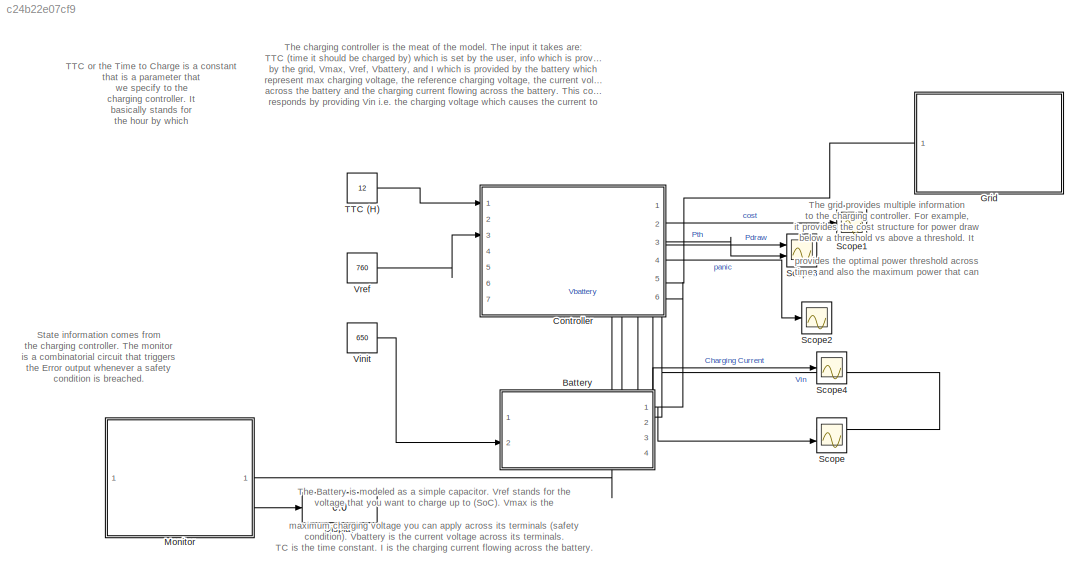
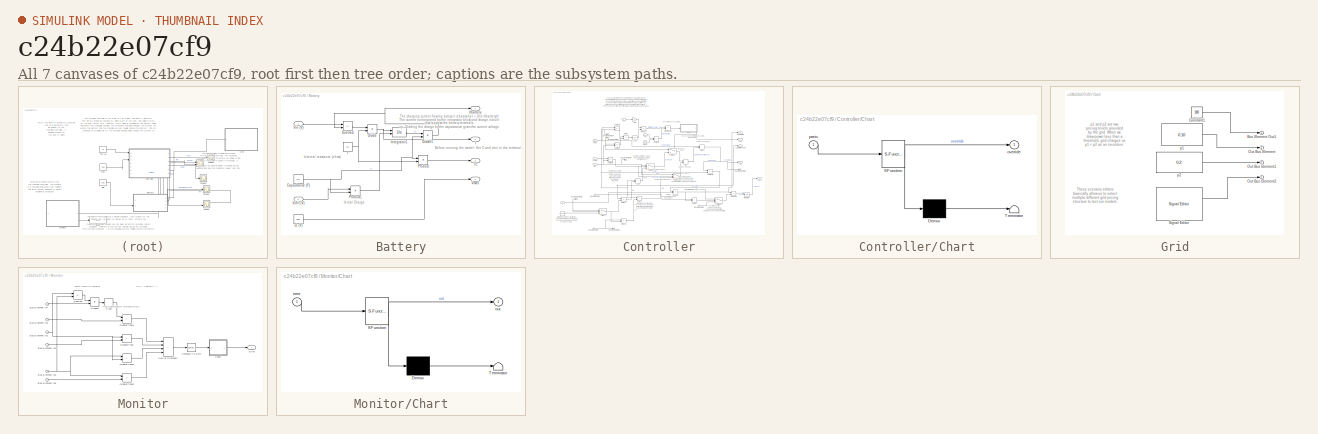
[diagram: thumbnail index - all 7 canvases of the model, root first then tree order]
MODEL slx_c24b22e07cf9
KIND model
CONFIG AbsTol = auto
CONFIG EnableMultiTasking = off
CONFIG FixedStep = auto
CONFIG MaxStep = auto
CONFIG MinStep = auto
CONFIG RelTol = 1e-3
CONFIG SampleTimeConstraint = Unconstrained
CONFIG SolverName = VariableStepAuto
CONFIG StartTime = 0.0
CONFIG StopTime = 12
BLOCK [SubSystem] Battery
  PortSchema = {"entries":[{"content":{"sides":[{"content":{"connectorIds":["In1","In2","Out4"]},"type":"ConnectorPlacement.EquallySpacedRectSide","uuid":"c26d1ca6-d5c6-41a9-a1a0-e3693243df6e"},{"content":{"connectorIds":["Out1"],"side":"RIGHT"},"type":"ConnectorPlacement.EquallySpacedRectSide","uuid":"035a91c5-644a-4a3c-8d91-d0006be2b843"},{"content":{"connectorIds":["Out2","Out3"],"side":"TOP"},"type":"Connect...<+266ch>
  Ports = [2, 4]
  RequestExecContextInheritance = off
BLOCK [Constant] Battery/Capacitance (F)
  Value = 0.5
BLOCK [Product] Battery/Divide
  Inputs = */
  Ports = [2, 1]
BLOCK [Product] Battery/Divide1
  Inputs = */
  Ports = [2, 1]
BLOCK [Outport] Battery/I
  Port = 2
BLOCK [Integrator] Battery/Integrator1
  InitialCondition = C*vinit
  InitialConditionSource = external
  Ports = [2, 1]
BLOCK [Product] Battery/Product
  Ports = [2, 1]
BLOCK [Product] Battery/Product1
  Ports = [2, 1]
BLOCK [Sum] Battery/Subtract
  IconShape = rectangular
  Inputs = +-
  Ports = [2, 1]
BLOCK [Outport] Battery/TC
  Port = 3
BLOCK [Outport] Battery/Vbattery
BLOCK [Inport] Battery/Vin (V)
BLOCK [Inport] Battery/Vinit (V)
  Port = 2
BLOCK [Outport] Battery/Vmax
  Port = 4
BLOCK [Constant] Battery/r
  Value = 10
BLOCK [Constant] Battery/v1 (V)
  Value = 800
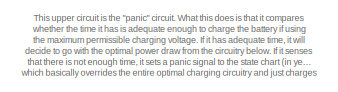
[diagram: Controller - part 1/2, top center region]
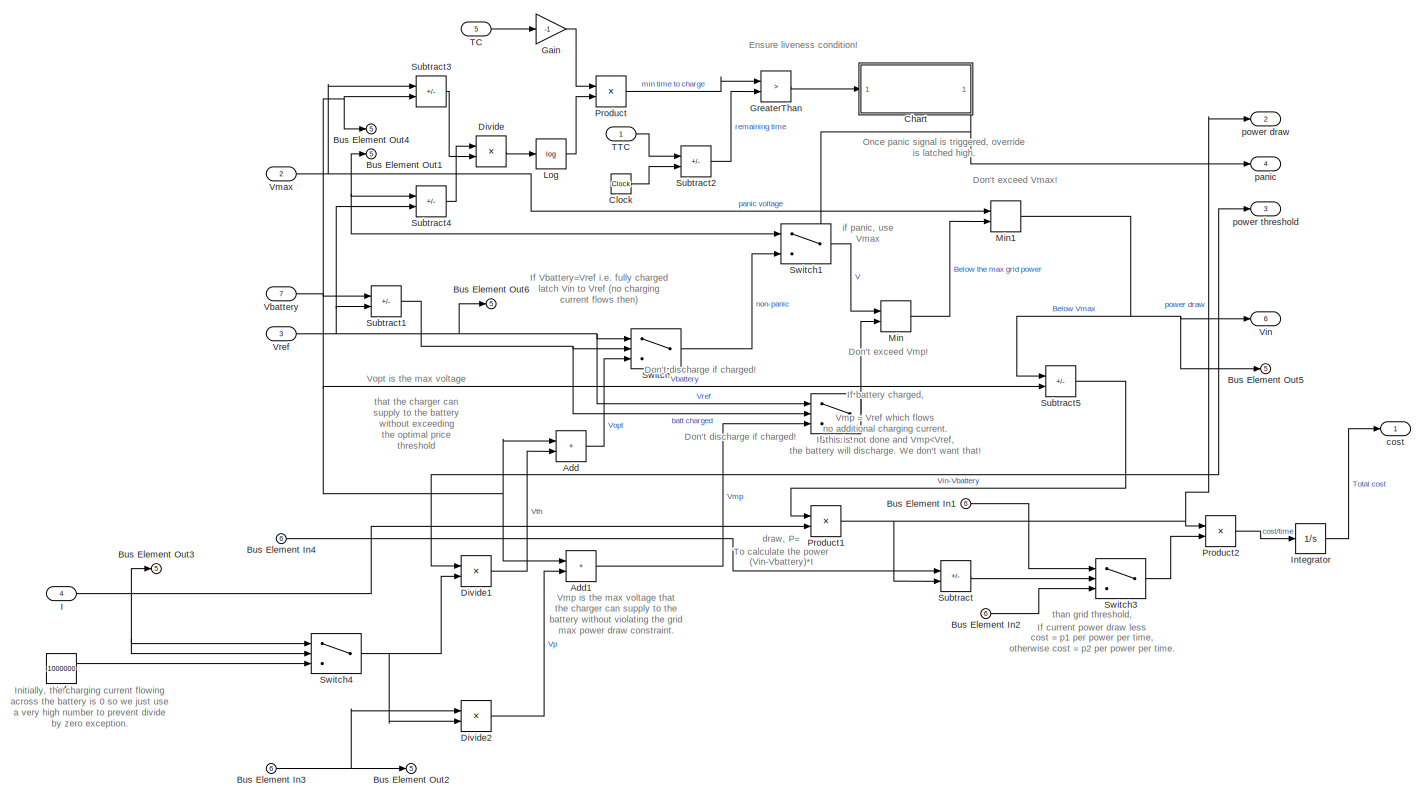
[diagram: Controller - part 2/2, most of the canvas]
BLOCK [SubSystem] Controller
  PortSchema = {"entries":[{"content":{"sides":[{"content":{"connectorIds":["In1","Out5","In2","In3","Out6"]},"type":"ConnectorPlacement.EquallySpacedRectSide","uuid":"c26d1ca6-d5c6-41a9-a1a0-e3693243df6e"},{"content":{"connectorIds":["In6","Out1","Out2","Out3","Out4","In7"],"side":"RIGHT"},"type":"ConnectorPlacement.EquallySpacedRectSide","uuid":"035a91c5-644a-4a3c-8d91-d0006be2b843"},{"content":{"connectorIds"...<+454ch>
  Ports = [7, 6]
  RequestExecContextInheritance = off
BLOCK [Sum] Controller/Add
  IconShape = rectangular
  Ports = [2, 1]
BLOCK [Sum] Controller/Add1
  IconShape = rectangular
  Ports = [2, 1]
BLOCK [Inport] Controller/Bus Element In1
  Port = 6
BLOCK [Inport] Controller/Bus Element In2
  Port = 6
BLOCK [Inport] Controller/Bus Element In3
  Port = 6
BLOCK [Inport] Controller/Bus Element In4
  Port = 6
BLOCK [Outport] Controller/Bus Element Out1
  Port = 5
BLOCK [Outport] Controller/Bus Element Out2
  Port = 5
BLOCK [Outport] Controller/Bus Element Out3
  Port = 5
BLOCK [Outport] Controller/Bus Element Out4
  Port = 5
BLOCK [Outport] Controller/Bus Element Out5
  Port = 5
BLOCK [Outport] Controller/Bus Element Out6
  Port = 5
BLOCK [SubSystem] Controller/Chart
  ErrorFcn = Stateflow.Translate.translate
  PermitHierarchicalResolution = ExplicitOnly
  PortSchema = {"entries":[{"content":{"sides":[{"content":{"connectorIds":["In1"]},"type":"ConnectorPlacement.EquallySpacedRectSide","uuid":"c26d1ca6-d5c6-41a9-a1a0-e3693243df6e"},{"content":{"connectorIds":[],"side":"RIGHT"},"type":"ConnectorPlacement.EquallySpacedRectSide","uuid":"035a91c5-644a-4a3c-8d91-d0006be2b843"},{"content":{"connectorIds":[],"side":"TOP"},"type":"ConnectorPlacement.EquallySpacedRectSid...<+384ch>
  Ports = [1, 1]
  RequestExecContextInheritance = off
  SFBlockType = Chart
  TreatAsAtomicUnit = on
BLOCK [Demux] Controller/Chart/ Demux 
  Outputs = 1
  Ports = [1, 1]
BLOCK [S-Function] Controller/Chart/ SFunction 
  EnableBusSupport = on
  FunctionName = sf_sfun
  PortCounts = [1 2]
  Ports = [1, 2]
  SFcnIsStateOwnerBlock = off
  SFunctionDeploymentMode = off
  Tag = Stateflow S-Function 3
BLOCK [Terminator] Controller/Chart/ Terminator 
BLOCK [Outport] Controller/Chart/override
BLOCK [Inport] Controller/Chart/panic
BLOCK [Clock] Controller/Clock
BLOCK [Product] Controller/Divide
  Inputs = */
  Ports = [2, 1]
BLOCK [Product] Controller/Divide1
  Inputs = */
  Ports = [2, 1]
BLOCK [Product] Controller/Divide2
  Inputs = */
  Ports = [2, 1]
BLOCK [Gain] Controller/Gain
  Gain = -1
BLOCK [RelationalOperator] Controller/GreaterThan
  InputSameDT = off
  Operator = >
  OutDataTypeStr = boolean
  Ports = [2, 1]
  RndMeth = Simplest
BLOCK [Inport] Controller/I
  Port = 4
BLOCK [Constant] Controller/Inf
  Value = 1000000
BLOCK [Integrator] Controller/Integrator
  Ports = [1, 1]
BLOCK [Math] Controller/Log
  Operator = log
  Ports = [1, 1]
BLOCK [MinMax] Controller/Min
  Inputs = 2
  Ports = [2, 1]
BLOCK [MinMax] Controller/Min1
  Inputs = 2
  Ports = [2, 1]
BLOCK [Product] Controller/Product
  Ports = [2, 1]
BLOCK [Product] Controller/Product1
  Ports = [2, 1]
BLOCK [Product] Controller/Product2
  Ports = [2, 1]
BLOCK [Sum] Controller/Subtract
  IconShape = rectangular
  Inputs = +-
  Ports = [2, 1]
BLOCK [Sum] Controller/Subtract1
  IconShape = rectangular
  Inputs = +-
  Ports = [2, 1]
BLOCK [Sum] Controller/Subtract2
  IconShape = rectangular
  Inputs = +-
  Ports = [2, 1]
BLOCK [Sum] Controller/Subtract3
  IconShape = rectangular
  Inputs = +-
  Ports = [2, 1]
BLOCK [Sum] Controller/Subtract4
  IconShape = rectangular
  Inputs = +-
  Ports = [2, 1]
BLOCK [Sum] Controller/Subtract5
  IconShape = rectangular
  Inputs = +-
  Ports = [2, 1]
BLOCK [Switch] Controller/Switch
  InputSameDT = off
  SaturateOnIntegerOverflow = off
BLOCK [Switch] Controller/Switch1
  Criteria = u2 > Threshold
  InputSameDT = off
  SaturateOnIntegerOverflow = off
BLOCK [Switch] Controller/Switch2
  InputSameDT = off
  SaturateOnIntegerOverflow = off
BLOCK [Switch] Controller/Switch3
  InputSameDT = off
  SaturateOnIntegerOverflow = off
  Threshold = -1e-6
BLOCK [Switch] Controller/Switch4
  Criteria = u2 > Threshold
  InputSameDT = off
  SaturateOnIntegerOverflow = off
BLOCK [Inport] Controller/TC
  Port = 5
BLOCK [Inport] Controller/TTC
BLOCK [Inport] Controller/Vbattery
  Port = 7
BLOCK [Outport] Controller/Vin
  Port = 6
BLOCK [Inport] Controller/Vmax
  Port = 2
BLOCK [Inport] Controller/Vref
  Port = 3
BLOCK [Outport] Controller/cost
BLOCK [Outport] Controller/panic
  Port = 4
BLOCK [Outport] Controller/power draw
  Port = 2
BLOCK [Outport] Controller/power threshold
  Port = 3
BLOCK [Display] Display
  Decimation = 1
  Ports = [1]
BLOCK [SubSystem] Grid
  NameLocation = top
  Ports = [0, 1]
  RequestExecContextInheritance = off
BLOCK [Outport] Grid/Bus Element Out1
BLOCK [Constant] Grid/Constant1
  Value = 1000
BLOCK [Outport] Grid/Out Bus Element
BLOCK [Outport] Grid/Out Bus Element1
BLOCK [Outport] Grid/Out Bus Element2
BLOCK [Reference] Grid/Signal Editor  REF=SignalEditorBlockLib/Signal Editor
  Ports = [0, 2]
  SourceBlock = SignalEditorBlockLib/Signal Editor
  SourceProductBaseCode = SL
  SourceType = SignalEditor
  UserDataPersistent = on
BLOCK [Constant] Grid/p1
  Value = 0.10
BLOCK [Constant] Grid/p2
  Value = 0.2
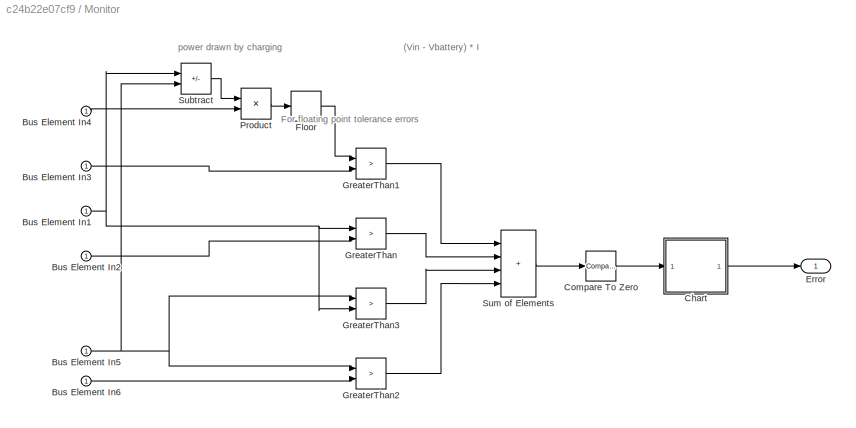
BLOCK [SubSystem] Monitor
  PortSchema = {"entries":[{"content":{"sides":[{"content":{"connectorIds":[]},"type":"ConnectorPlacement.EquallySpacedRectSide","uuid":"d61a2096-d21e-45a0-93a4-4f716f0af920"},{"content":{"connectorIds":["In1","Out1"],"side":"RIGHT"},"type":"ConnectorPlacement.EquallySpacedRectSide","uuid":"21da9122-f398-4482-953b-b1590b590559"},{"content":{"connectorIds":[],"side":"TOP"},"type":"ConnectorPlacement.EquallySpaced...<+241ch>
  Ports = [1, 1]
  RequestExecContextInheritance = off
BLOCK [Inport] Monitor/Bus Element In1
BLOCK [Inport] Monitor/Bus Element In2
BLOCK [Inport] Monitor/Bus Element In3
BLOCK [Inport] Monitor/Bus Element In4
BLOCK [Inport] Monitor/Bus Element In5
BLOCK [Inport] Monitor/Bus Element In6
BLOCK [SubSystem] Monitor/Chart
  ErrorFcn = Stateflow.Translate.translate
  PermitHierarchicalResolution = ExplicitOnly
  Ports = [1, 1]
  RequestExecContextInheritance = off
  SFBlockType = Chart
  TreatAsAtomicUnit = on
BLOCK [Demux] Monitor/Chart/ Demux 
  Outputs = 1
  Ports = [1, 1]
BLOCK [S-Function] Monitor/Chart/ SFunction 
  EnableBusSupport = on
  FunctionName = sf_sfun
  PortCounts = [1 2]
  Ports = [1, 2]
  SFcnIsStateOwnerBlock = off
  SFunctionDeploymentMode = off
  Tag = Stateflow S-Function 1
BLOCK [Terminator] Monitor/Chart/ Terminator 
BLOCK [Inport] Monitor/Chart/error
BLOCK [Outport] Monitor/Chart/out
BLOCK [Reference] Monitor/Compare To Zero  REF=simulink/Logic and Bit
Operations/Compare
To Zero
  Ports = [1, 1]
  SourceBlock = simulink/Logic and Bit\nOperations/Compare\nTo Zero
  SourceProductBaseCode = SL
  SourceType = Compare To Zero
BLOCK [Outport] Monitor/Error
BLOCK [Rounding] Monitor/Floor
BLOCK [RelationalOperator] Monitor/GreaterThan
  InputSameDT = off
  Operator = >
  OutDataTypeStr = boolean
  Ports = [2, 1]
  RndMeth = Simplest
BLOCK [RelationalOperator] Monitor/GreaterThan1
  InputSameDT = off
  Operator = >
  OutDataTypeStr = boolean
  Ports = [2, 1]
  RndMeth = Ceiling
BLOCK [RelationalOperator] Monitor/GreaterThan2
  InputSameDT = off
  Operator = >
  OutDataTypeStr = boolean
  Ports = [2, 1]
  RndMeth = Simplest
BLOCK [RelationalOperator] Monitor/GreaterThan3
  InputSameDT = off
  Operator = >
  OutDataTypeStr = boolean
  Ports = [2, 1]
  RndMeth = Simplest
BLOCK [Product] Monitor/Product
  Ports = [2, 1]
BLOCK [Sum] Monitor/Subtract
  IconShape = rectangular
  Inputs = +-
  Ports = [2, 1]
BLOCK [Sum] Monitor/Sum of Elements
  IconShape = rectangular
  Inputs = ++++
  Ports = [4, 1]
BLOCK [Scope] Scope
  Floating = off
  NumInputPorts = 2
  Ports = [2]
  ScopeSpecificationString = Simulink.scopes.TimeScopeBlockCfg('CurrentConfiguration', extmgr.ConfigurationSet(extmgr.Configuration('Core','General UI',true),extmgr.Configuration('Core','Source UI',true),extmgr.Configuration('Sources','WiredSimulink',true),extmgr.Configuration('Visuals','Time Domain',true,'SerializedDisplays',{struct('MinYLimReal','631.25','MaxYLimReal','818.75','YLabelReal','','MinYLimMag','631.25','MaxYLimM...<+1356ch>
BLOCK [Scope] Scope1
  Floating = off
  NumInputPorts = 1
  Ports = [1]
  ScopeSpecificationString = Simulink.scopes.TimeScopeBlockCfg('CurrentConfiguration', extmgr.ConfigurationSet(extmgr.Configuration('Core','General UI',true),extmgr.Configuration('Core','Source UI',true),extmgr.Configuration('Sources','WiredSimulink',true,'DataLoggingVariableName','ScopeData1'),extmgr.Configuration('Visuals','Time Domain',true,'SerializedDisplays',{struct('MinYLimReal','-36.72509','MaxYLimReal','330.52584','Y...<+1405ch>
BLOCK [Scope] Scope2
  Floating = off
  NumInputPorts = 1
  Ports = [1]
  ScopeSpecificationString = Simulink.scopes.TimeScopeBlockCfg('CurrentConfiguration', extmgr.ConfigurationSet(extmgr.Configuration('Core','General UI',true),extmgr.Configuration('Core','Source UI',true),extmgr.Configuration('Sources','WiredSimulink',true,'DataLoggingVariableName','ScopeData2'),extmgr.Configuration('Visuals','Time Domain',true,'SerializedDisplays',{struct('MinYLimReal','-1.00000','MaxYLimReal','1.00000','YLab...<+1398ch>
BLOCK [Scope] Scope3
  Floating = off
  NumInputPorts = 2
  Ports = [2]
  ScopeSpecificationString = Simulink.scopes.TimeScopeBlockCfg('CurrentConfiguration', extmgr.ConfigurationSet(extmgr.Configuration('Core','General UI',true),extmgr.Configuration('Core','Source UI',true),extmgr.Configuration('Sources','WiredSimulink',true,'DataLoggingVariableName','ScopeData3'),extmgr.Configuration('Visuals','Time Domain',true,'SerializedDisplays',{struct('MinYLimReal','-62.5','MaxYLimReal','562.5','YLabelRea...<+1459ch>
BLOCK [Scope] Scope4
  Floating = off
  NumInputPorts = 1
  Ports = [1]
  ScopeSpecificationString = Simulink.scopes.TimeScopeBlockCfg('CurrentConfiguration', extmgr.ConfigurationSet(extmgr.Configuration('Core','General UI',true),extmgr.Configuration('Core','Source UI',true),extmgr.Configuration('Sources','WiredSimulink',true,'DataLoggingVariableName','ScopeData1'),extmgr.Configuration('Visuals','Time Domain',true,'SerializedDisplays',{struct('MinYLimReal','-0.88388','MaxYLimReal','7.95495','YLab...<+1407ch>
BLOCK [Constant] TTC (H)
  Value = 12
BLOCK [Constant] Vinit
  Value = 650
BLOCK [Constant] Vref
  Value = 760
ANNOTATION (root): State information comes from the charging controller. The monitor is a combinatorial circuit that triggers the Error output whenever a safety condition is breached.
ANNOTATION (root): TTC or the Time to Charge is a constant that is a parameter that we specify to the charging controller. It basically stands for the hour by which the battery should be fully charged. i.e. if it's 8, it means that the battery must fully charge within 8 hours would be a liveness condition.
ANNOTATION (root): The Battery is modeled as a simple capacitor. Vref stands for the voltage that you want to charge up to (SoC). Vmax is the maximum charging voltage you can apply across its terminals (safety condition). Vbattery is the current voltage across its terminals. TC is the time constant. I is the charging current flowing across the battery.
ANNOTATION (root): The charging controller is the meat of the model. The input it takes are: TTC (time it should be charged by) which is set by the user, info which is provided by the grid, Vmax, Vref, Vbattery, and I which is provided by the battery which represent max charging voltage, the reference charging voltage, the current voltage across the battery and the charging current flowing across the battery. This c...<+232ch>
ANNOTATION (root): The grid provides multiple information to the charging controller. For example, it provides the cost structure for power draw below a threshold vs above a threshold. It provides the optimal power threshold across time, and also the maximum power that can be safely withdrawn from the grid (Saftey condition).
ANNOTATION Battery: Before running the model: Set C and vinit in the terminal.
ANNOTATION Battery: Initial Charge
ANNOTATION Battery: Internal resistance (ohms)
ANNOTATION Battery: The charging current flowing across it is basically I = (Vin-Vbattery)/r The current is integrated by the integrator block and charge is built up. Dividing the charge by the capacitance gives the current voltage levels across the battery terminals.
ANNOTATION Controller: Ensure liveness condition!
ANNOTATION Controller: Don't exceed Vmax!
ANNOTATION Controller: If Vbattery=Vref i.e. fully charged latch Vin to Vref (no charging current flows then)
ANNOTATION Controller: Don't discharge if charged!
ANNOTATION Controller: Don't exceed Vmp!
ANNOTATION Controller: If battery charged, Vmp = Vref which flows no additional charging current. If this is not done and Vmp<Vref, the battery will discharge. We don't want that!
ANNOTATION Controller: If current power draw less than grid threshold, cost = p1 per power per time, otherwise cost = p2 per power per time.
ANNOTATION Controller: Initially, the charging current flowing across the battery is 0 so we just use a very high number to prevent divide by zero exception.
ANNOTATION Controller: Once panic signal is triggered, override is latched high.
ANNOTATION Controller: This upper circuit is the "panic" circuit. What this does is that it compares whether the time it has is adequate enough to charge the battery if using the maximum permissible charging voltage. If it has adequate time, it will decide to go with the optimal power draw from the circuitry below. If it senses that there is not enough time, it sets a panic signal to the state chart (in yellow) which ba...<+298ch>
ANNOTATION Controller: To calculate the power draw, P= (Vin-Vbattery)*I
ANNOTATION Controller: Vmp is the max voltage that the charger can supply to the battery without violating the grid max power draw constraint.
ANNOTATION Controller: Vopt is the max voltage that the charger can supply to the battery without exceeding the optimal price threshold
ANNOTATION Controller: if panic, use Vmax
ANNOTATION Grid: These scenario editors basically allow us to select multiple different grid pricing structure to test our models.
ANNOTATION Grid: p1 and p2 are two pricing levels provided by the grid. When we draw power less than a threshold, grid charges us p1 < p2 as an incentive.
ANNOTATION Monitor: (Vin - Vbattery) * I
ANNOTATION Monitor: For floating point tolerance errors
ANNOTATION Monitor: power drawn by charging
NET Battery/Capacitance (F):1 -> Battery/Divide1:2, Battery/Product1:2, Battery/Product:1
NET Battery/Divide1:1 -> Battery/Subtract:2, Battery/Vbattery:1
NET Battery/Divide:1 -> Battery/I:1, Battery/Integrator1:1
LINE Battery/Integrator1:1 -> Battery/Divide1:1
LINE Battery/Product1:1 -> Battery/Integrator1:2
LINE Battery/Product:1 -> Battery/TC:1
LINE Battery/Subtract:1 -> Battery/Divide:1
LINE Battery/Vin (V):1 -> Battery/Subtract:1
LINE Battery/Vinit (V):1 -> Battery/Product1:1
NET Battery/r:1 -> Battery/Divide:2, Battery/Product:2
LINE Battery/v1 (V):1 -> Battery/Vmax:1
NET Battery:1 -> Controller:7, Scope:2
NET Battery:2 -> Controller:4, Scope4:1
LINE Battery:3 -> Controller:5
LINE Battery:4 -> Controller:2
LINE Controller/Add1:1 -> Controller/Switch2:3
LINE Controller/Add:1 -> Controller/Switch:3
LINE Controller/Bus Element In1:1 -> Controller/Switch3:1
LINE Controller/Bus Element In2:1 -> Controller/Switch3:3
NET Controller/Bus Element In3:1 -> Controller/Bus Element Out2:1, Controller/Divide2:1
NET Controller/Bus Element In4:1 -> Controller/Divide1:1, Controller/Subtract:1, Controller/power threshold:1
NET Controller/Chart:1 -> Controller/Switch1:2, Controller/panic:1
LINE Controller/Clock:1 -> Controller/Subtract2:2
LINE Controller/Divide1:1 -> Controller/Add:2
LINE Controller/Divide2:1 -> Controller/Add1:2
LINE Controller/Divide:1 -> Controller/Log:1
LINE Controller/Gain:1 -> Controller/Product:1
LINE Controller/GreaterThan:1 -> Controller/Chart:1
NET Controller/I:1 -> Controller/Bus Element Out3:1, Controller/Product1:2, Controller/Switch4:1, Controller/Switch4:2
LINE Controller/Inf:1 -> Controller/Switch4:3
LINE Controller/Integrator:1 -> Controller/cost:1
LINE Controller/Log:1 -> Controller/Product:2
NET Controller/Min1:1 -> Controller/Bus Element Out5:1, Controller/Subtract5:1, Controller/Vin:1
LINE Controller/Min:1 -> Controller/Min1:2
NET Controller/Product1:1 -> Controller/Product2:1, Controller/Subtract:2, Controller/power draw:1
LINE Controller/Product2:1 -> Controller/Integrator:1
LINE Controller/Product:1 -> Controller/GreaterThan:1
NET Controller/Subtract1:1 -> Controller/Switch2:2, Controller/Switch:2
LINE Controller/Subtract2:1 -> Controller/GreaterThan:2
LINE Controller/Subtract3:1 -> Controller/Divide:2
LINE Controller/Subtract4:1 -> Controller/Divide:1
LINE Controller/Subtract5:1 -> Controller/Product1:1
LINE Controller/Subtract:1 -> Controller/Switch3:2
LINE Controller/Switch1:1 -> Controller/Min:1
LINE Controller/Switch2:1 -> Controller/Min:2
LINE Controller/Switch3:1 -> Controller/Product2:2
NET Controller/Switch4:1 -> Controller/Divide1:2, Controller/Divide2:2
LINE Controller/Switch:1 -> Controller/Switch1:3
LINE Controller/TC:1 -> Controller/Gain:1
LINE Controller/TTC:1 -> Controller/Subtract2:1
NET Controller/Vbattery:1 -> Controller/Add1:1, Controller/Add:1, Controller/Bus Element Out4:1, Controller/Subtract1:1, Controller/Subtract3:2, Controller/Subtract5:2
NET Controller/Vmax:1 -> Controller/Bus Element Out1:1, Controller/Min1:1, Controller/Subtract3:1, Controller/Subtract4:1, Controller/Switch1:1
NET Controller/Vref:1 -> Controller/Bus Element Out6:1, Controller/Subtract1:2, Controller/Subtract4:2, Controller/Switch2:1, Controller/Switch:1
LINE Controller:1 -> Scope1:1
LINE Controller:2 -> Scope3:1
LINE Controller:3 -> Scope3:2
LINE Controller:4 -> Scope2:1
LINE Controller:5 -> Monitor:1
NET Controller:6 -> Battery:1, Scope:1
LINE Grid/Constant1:1 -> Grid/Bus Element Out1:1
LINE Grid/Signal Editor:1 -> Grid/Out Bus Element2:1
LINE Grid/p1:1 -> Grid/Out Bus Element:1
LINE Grid/p2:1 -> Grid/Out Bus Element1:1
LINE Grid:1 -> Controller:6
NET Monitor/Bus Element In1:1 -> Monitor/GreaterThan3:2, Monitor/GreaterThan:1, Monitor/Subtract:1
LINE Monitor/Bus Element In2:1 -> Monitor/GreaterThan:2
LINE Monitor/Bus Element In3:1 -> Monitor/GreaterThan1:2
LINE Monitor/Bus Element In4:1 -> Monitor/Product:2
NET Monitor/Bus Element In5:1 -> Monitor/GreaterThan2:1, Monitor/GreaterThan3:1, Monitor/Subtract:2
LINE Monitor/Bus Element In6:1 -> Monitor/GreaterThan2:2
LINE Monitor/Chart:1 -> Monitor/Error:1
LINE Monitor/Compare To Zero:1 -> Monitor/Chart:1
LINE Monitor/Floor:1 -> Monitor/GreaterThan1:1
LINE Monitor/GreaterThan1:1 -> Monitor/Sum of Elements:1
LINE Monitor/GreaterThan2:1 -> Monitor/Sum of Elements:4
LINE Monitor/GreaterThan3:1 -> Monitor/Sum of Elements:3
LINE Monitor/GreaterThan:1 -> Monitor/Sum of Elements:2
LINE Monitor/Product:1 -> Monitor/Floor:1
LINE Monitor/Subtract:1 -> Monitor/Product:1
LINE Monitor/Sum of Elements:1 -> Monitor/Compare To Zero:1
LINE Monitor:1 -> Display:1
LINE TTC (H):1 -> Controller:1
LINE Vinit:1 -> Battery:2
LINE Vref:1 -> Controller:3
note: NET lines group one-source signal fan-out (src -> all destinations, sorted); 1:1 wires keep LINE
CHART Controller/Chart states=2 transitions=2
  STATE_LABEL 'Optimize\noverride=0;'
  STATE_LABEL 'Panic\noverride=1;'
CHART Monitor/Chart states=2 transitions=2
  STATE_LABEL 'NotError\nout=0;'
  STATE_LABEL 'Error\nout=1;\n'
CHART  states=0 transitions=0
CHART  states=0 transitions=0
